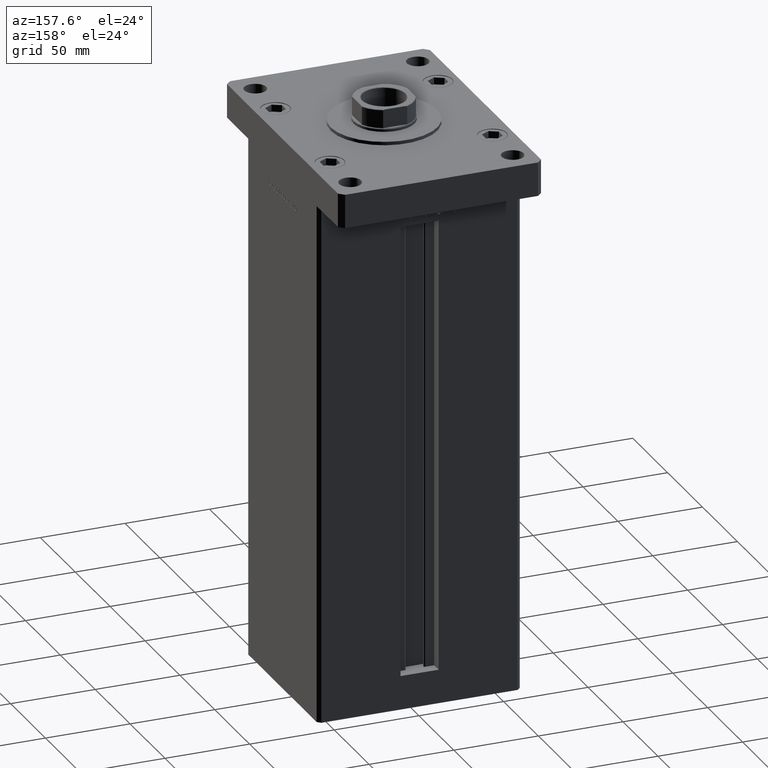
[diagram: clean part render]
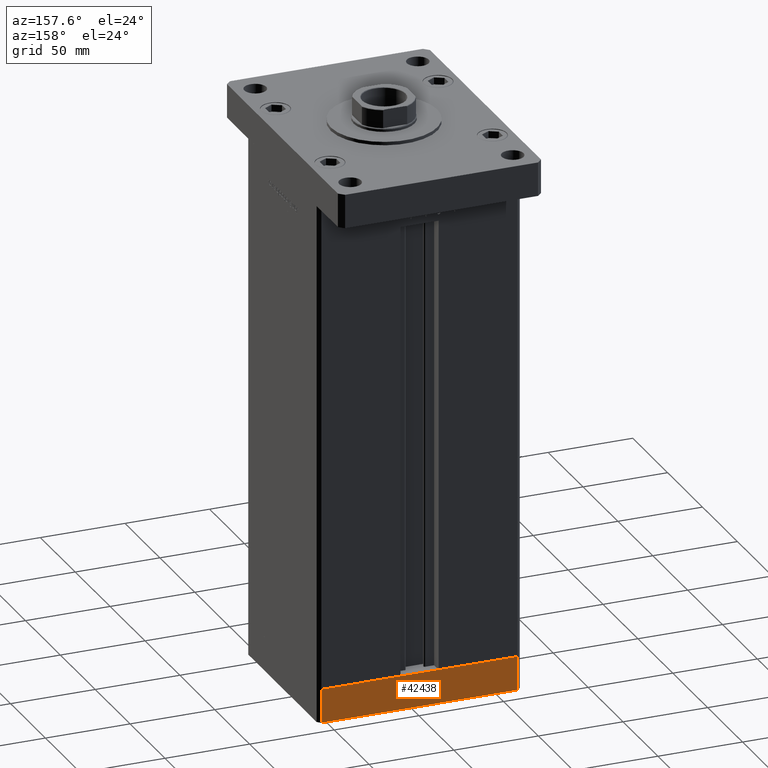
[diagram: same view with one face highlighted and labeled with its STEP entity id]
A machine part, auxiliary view. The second image highlights one B-rep face of the part: STEP entity #42438.
In plain terms, the highlighted planar face has unit normal (0, 1, 0).
Its self-contained STEP definition (entity closure, byte-faithful):
#1433 = VERTEX_POINT ( 'NONE', #15004 ) ;
#1550 = VECTOR ( 'NONE', #17269, 1000.000000000000000 ) ;
#2956 = CARTESIAN_POINT ( 'NONE',  ( 57.99999999999993605, 51.00000000000000711, -20.00000000000000000 ) ) ;
#4890 = VERTEX_POINT ( 'NONE', #32272 ) ;
#9414 = DIRECTION ( 'NONE',  ( 0.000000000000000000, 0.000000000000000000, 1.000000000000000000 ) ) ;
#9957 = ORIENTED_EDGE ( 'NONE', *, *, #26755, .T. ) ;
#10951 = VERTEX_POINT ( 'NONE', #2956 ) ;
#12798 = DIRECTION ( 'NONE',  ( -1.000000000000000000, -2.392722035830079958E-16, 0.000000000000000000 ) ) ;
#13366 = VECTOR ( 'NONE', #9414, 1000.000000000000000 ) ;
#13437 = ORIENTED_EDGE ( 'NONE', *, *, #47917, .T. ) ;
#15004 = CARTESIAN_POINT ( 'NONE',  ( -57.99999999999999289, 50.99999999999997868, 0.000000000000000000 ) ) ;
#16899 = LINE ( 'NONE', #50113, #50087 ) ;
#17269 = DIRECTION ( 'NONE',  ( 0.000000000000000000, 0.000000000000000000, 1.000000000000000000 ) ) ;
#18179 = FACE_OUTER_BOUND ( 'NONE', #53687, .T. ) ;
#18356 = DIRECTION ( 'NONE',  ( -1.000000000000000000, -2.392722035830079958E-16, 0.000000000000000000 ) ) ;
#19921 = EDGE_CURVE ( 'NONE', #4890, #1433, #16899, .T. ) ;
#21657 = CARTESIAN_POINT ( 'NONE',  ( -57.99999999999999289, 50.99999999999997868, -20.00000000000000000 ) ) ;
#22137 = EDGE_CURVE ( 'NONE', #10951, #4890, #49970, .T. ) ;
#26058 = CARTESIAN_POINT ( 'NONE',  ( 57.99999999999993605, 51.00000000000000711, -20.00000000000000000 ) ) ;
#26335 = DIRECTION ( 'NONE',  ( -1.000000000000000000, -2.392722035830079958E-16, 0.000000000000000000 ) ) ;
#26514 = CARTESIAN_POINT ( 'NONE',  ( 57.99999999999993605, 51.00000000000000711, -20.00000000000000000 ) ) ;
#26755 = EDGE_CURVE ( 'NONE', #10951, #53802, #46695, .T. ) ;
#28223 = ORIENTED_EDGE ( 'NONE', *, *, #19921, .F. ) ;
#29458 = VECTOR ( 'NONE', #18356, 1000.000000000000000 ) ;
#32272 = CARTESIAN_POINT ( 'NONE',  ( 57.99999999999993605, 51.00000000000000711, 0.000000000000000000 ) ) ;
#34234 = PLANE ( 'NONE',  #45536 ) ;
#38260 = LINE ( 'NONE', #46724, #13366 ) ;
#42438 = ADVANCED_FACE ( 'NONE', ( #18179 ), #34234, .T. ) ;
#45536 = AXIS2_PLACEMENT_3D ( 'NONE', #26058, #47056, #26335 ) ;
#45877 = CARTESIAN_POINT ( 'NONE',  ( 57.99999999999993605, 51.00000000000000711, -20.00000000000000000 ) ) ;
#46695 = LINE ( 'NONE', #26514, #29458 ) ;
#46724 = CARTESIAN_POINT ( 'NONE',  ( -57.99999999999999289, 50.99999999999997868, -20.00000000000000000 ) ) ;
#47056 = DIRECTION ( 'NONE',  ( -2.392722035830079958E-16, 1.000000000000000000, 0.000000000000000000 ) ) ;
#47372 = ORIENTED_EDGE ( 'NONE', *, *, #22137, .F. ) ;
#47917 = EDGE_CURVE ( 'NONE', #53802, #1433, #38260, .T. ) ;
#49970 = LINE ( 'NONE', #45877, #1550 ) ;
#50087 = VECTOR ( 'NONE', #12798, 1000.000000000000000 ) ;
#50113 = CARTESIAN_POINT ( 'NONE',  ( 57.99999999999993605, 51.00000000000000711, 0.000000000000000000 ) ) ;
#53687 = EDGE_LOOP ( 'NONE', ( #28223, #47372, #9957, #13437 ) ) ;
#53802 = VERTEX_POINT ( 'NONE', #21657 ) ;